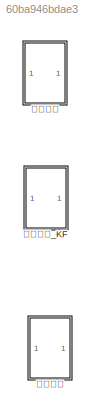
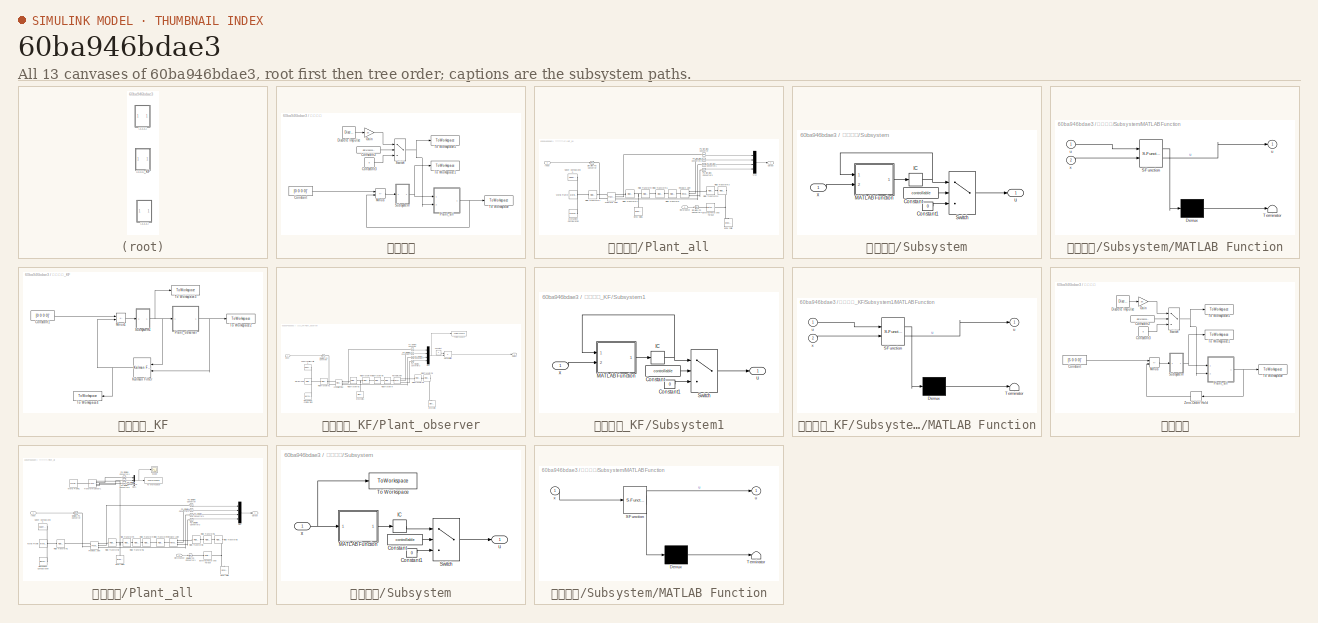
[diagram: thumbnail index - all 13 canvases of the model, root first then tree order]
MODEL slx_60ba946bdae3
KIND model
CONFIG AbsTol = auto
CONFIG EnableMultiTasking = off
CONFIG FixedStep = control_period
CONFIG MaxStep = auto
CONFIG MinStep = auto
CONFIG RelTol = 1e-3
CONFIG SampleTimeConstraint = Unconstrained
CONFIG SolverName = FixedStepAuto
CONFIG StartTime = 0.0
CONFIG StopTime = Tf
BLOCK [SubSystem] 振り上げ
  Commented = on
  Ports = []
  RequestExecContextInheritance = off
BLOCK [Constant] 振り上げ/Constant
  Value = [0 0 0 0]'
BLOCK [Constant] 振り上げ/Constant2
  Value = disturbance_on
BLOCK [Constant] 振り上げ/Constant3
  Value = 0
BLOCK [Reference] 振り上げ/Discrete Impulse  REF=dspsrcs4/Discrete 
Impulse
  Ports = [0, 1]
  SourceBlock = dspsrcs4/Discrete \nImpulse
  SourceProductBaseCode = DS
  SourceType = Discrete Impulse
BLOCK [Gain] 振り上げ/Gain
  Gain = 20
BLOCK [Sum] 振り上げ/Minus
  IconShape = rectangular
  Inputs = +-
  Ports = [2, 1]
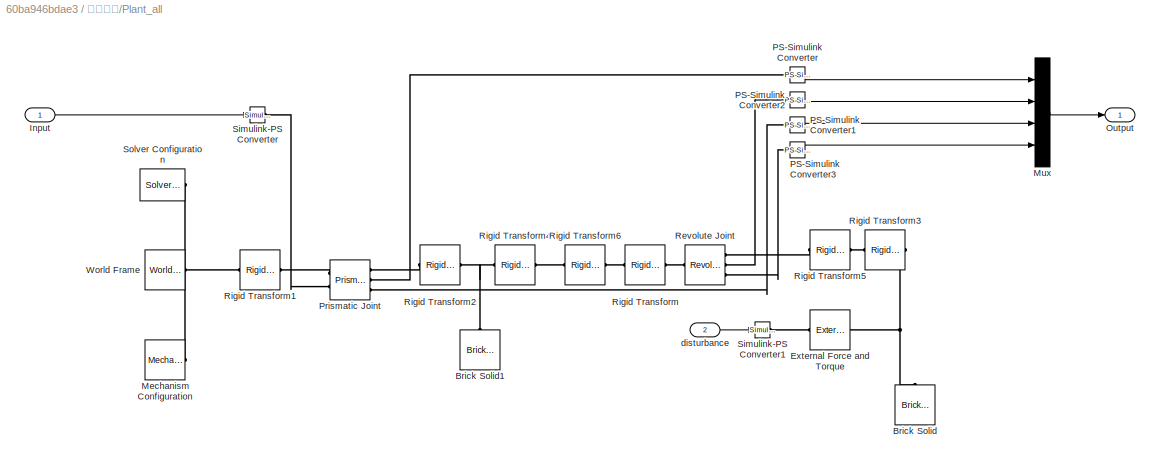
BLOCK [SubSystem] 振り上げ/Plant_all
  Ports = [2, 1]
  RequestExecContextInheritance = off
BLOCK [Reference] 振り上げ/Plant_all/Brick Solid  REF=sm_lib/Body Elements/Brick Solid
  NameLocation = right
  Ports = [0, 0, 0, 0, 0, 0, 1]
  SourceBlock = sm_lib/Body Elements/Brick Solid
  SourceProductBaseCode = MS
  SourceType = Brick Solid
BLOCK [Reference] 振り上げ/Plant_all/Brick Solid1  REF=sm_lib/Body Elements/Brick Solid
  NameLocation = right
  Ports = [0, 0, 0, 0, 0, 0, 1]
  SourceBlock = sm_lib/Body Elements/Brick Solid
  SourceProductBaseCode = MS
  SourceType = Brick Solid
BLOCK [Reference] 振り上げ/Plant_all/External Force and Torque  REF=sm_lib/Forces and
Torques/External Force
and Torque
  Ports = [0, 0, 0, 0, 0, 1, 1]
  SourceBlock = sm_lib/Forces and\nTorques/External Force\nand Torque
  SourceProductBaseCode = MS
  SourceType = External Force\nand Torque
BLOCK [Inport] 振り上げ/Plant_all/Input
BLOCK [Reference] 振り上げ/Plant_all/Mechanism Configuration  REF=sm_lib/Utilities/Mechanism
Configuration
  Ports = [0, 0, 0, 0, 0, 0, 1]
  SourceBlock = sm_lib/Utilities/Mechanism\nConfiguration
  SourceProductBaseCode = MS
  SourceType = Mechanism\nConfiguration
BLOCK [Mux] 振り上げ/Plant_all/Mux
  DisplayOption = bar
  Ports = [4, 1]
BLOCK [Outport] 振り上げ/Plant_all/Output
BLOCK [Reference] 振り上げ/Plant_all/PS-Simulink Converter  REF=nesl_utility/PS-Simulink
Converter
  Ports = [0, 1, 0, 0, 0, 1]
  SourceBlock = nesl_utility/PS-Simulink\nConverter
  SourceProductBaseCode = SS,PW,VE
  SourceType = PS-Simulink\nConverter
BLOCK [Reference] 振り上げ/Plant_all/PS-Simulink Converter1  REF=nesl_utility/PS-Simulink
Converter
  Ports = [0, 1, 0, 0, 0, 1]
  SourceBlock = nesl_utility/PS-Simulink\nConverter
  SourceProductBaseCode = SS,PW,VE
  SourceType = PS-Simulink\nConverter
BLOCK [Reference] 振り上げ/Plant_all/PS-Simulink Converter2  REF=nesl_utility/PS-Simulink
Converter
  Ports = [0, 1, 0, 0, 0, 1]
  SourceBlock = nesl_utility/PS-Simulink\nConverter
  SourceProductBaseCode = SS,PW,VE
  SourceType = PS-Simulink\nConverter
BLOCK [Reference] 振り上げ/Plant_all/PS-Simulink Converter3  REF=nesl_utility/PS-Simulink
Converter
  Ports = [0, 1, 0, 0, 0, 1]
  SourceBlock = nesl_utility/PS-Simulink\nConverter
  SourceProductBaseCode = SS,PW,VE
  SourceType = PS-Simulink\nConverter
BLOCK [Reference] 振り上げ/Plant_all/Prismatic Joint  REF=sm_lib/Joints/Prismatic
Joint
  Ports = [0, 0, 0, 0, 0, 2, 3]
  SourceBlock = sm_lib/Joints/Prismatic\nJoint
  SourceProductBaseCode = MS
  SourceType = Prismatic\nJoint
BLOCK [Reference] 振り上げ/Plant_all/Revolute Joint  REF=sm_lib/Joints/Revolute Joint
  Ports = [0, 0, 0, 0, 0, 1, 3]
  SourceBlock = sm_lib/Joints/Revolute Joint
  SourceProductBaseCode = MS
  SourceType = Revolute Joint
BLOCK [Reference] 振り上げ/Plant_all/Rigid Transform  REF=sm_lib/Frames and
Transforms/Rigid
Transform
  Ports = [0, 0, 0, 0, 0, 1, 1]
  SourceBlock = sm_lib/Frames and\nTransforms/Rigid\nTransform
  SourceProductBaseCode = MS
  SourceType = Rigid\nTransform
BLOCK [Reference] 振り上げ/Plant_all/Rigid Transform1  REF=sm_lib/Frames and
Transforms/Rigid
Transform
  Ports = [0, 0, 0, 0, 0, 1, 1]
  SourceBlock = sm_lib/Frames and\nTransforms/Rigid\nTransform
  SourceProductBaseCode = MS
  SourceType = Rigid\nTransform
BLOCK [Reference] 振り上げ/Plant_all/Rigid Transform2  REF=sm_lib/Frames and
Transforms/Rigid
Transform
  Ports = [0, 0, 0, 0, 0, 1, 1]
  SourceBlock = sm_lib/Frames and\nTransforms/Rigid\nTransform
  SourceProductBaseCode = MS
  SourceType = Rigid\nTransform
BLOCK [Reference] 振り上げ/Plant_all/Rigid Transform3  REF=sm_lib/Frames and
Transforms/Rigid
Transform
  Ports = [0, 0, 0, 0, 0, 1, 1]
  SourceBlock = sm_lib/Frames and\nTransforms/Rigid\nTransform
  SourceProductBaseCode = MS
  SourceType = Rigid\nTransform
BLOCK [Reference] 振り上げ/Plant_all/Rigid Transform4  REF=sm_lib/Frames and
Transforms/Rigid
Transform
  Ports = [0, 0, 0, 0, 0, 1, 1]
  SourceBlock = sm_lib/Frames and\nTransforms/Rigid\nTransform
  SourceProductBaseCode = MS
  SourceType = Rigid\nTransform
BLOCK [Reference] 振り上げ/Plant_all/Rigid Transform5  REF=sm_lib/Frames and
Transforms/Rigid
Transform
  Ports = [0, 0, 0, 0, 0, 1, 1]
  SourceBlock = sm_lib/Frames and\nTransforms/Rigid\nTransform
  SourceProductBaseCode = MS
  SourceType = Rigid\nTransform
BLOCK [Reference] 振り上げ/Plant_all/Rigid Transform6  REF=sm_lib/Frames and
Transforms/Rigid
Transform
  Ports = [0, 0, 0, 0, 0, 1, 1]
  SourceBlock = sm_lib/Frames and\nTransforms/Rigid\nTransform
  SourceProductBaseCode = MS
  SourceType = Rigid\nTransform
BLOCK [Reference] 振り上げ/Plant_all/Simulink-PS Converter  REF=nesl_utility/Simulink-PS
Converter
  Ports = [1, 0, 0, 0, 0, 0, 1]
  SourceBlock = nesl_utility/Simulink-PS\nConverter
  SourceProductBaseCode = SS,PW,VE
  SourceType = Simulink-PS\nConverter
BLOCK [Reference] 振り上げ/Plant_all/Simulink-PS Converter1  REF=nesl_utility/Simulink-PS
Converter
  Ports = [1, 0, 0, 0, 0, 0, 1]
  SourceBlock = nesl_utility/Simulink-PS\nConverter
  SourceProductBaseCode = SS,PW,VE
  SourceType = Simulink-PS\nConverter
BLOCK [Reference] 振り上げ/Plant_all/Solver Configuration  REF=nesl_utility/Solver
Configuration
  Ports = [0, 0, 0, 0, 0, 0, 1]
  SourceBlock = nesl_utility/Solver\nConfiguration
  SourceProductBaseCode = SS,PW,VE
  SourceType = Solver\nConfiguration
BLOCK [Reference] 振り上げ/Plant_all/World Frame  REF=sm_lib/Frames and
Transforms/World Frame
  Ports = [0, 0, 0, 0, 0, 0, 1]
  SourceBlock = sm_lib/Frames and\nTransforms/World Frame
  SourceProductBaseCode = MS
  SourceType = World Frame
BLOCK [Inport] 振り上げ/Plant_all/disturbance
  Port = 2
BLOCK [SubSystem] 振り上げ/Subsystem
  Ports = [1, 1]
  RequestExecContextInheritance = off
BLOCK [Constant] 振り上げ/Subsystem/Constant
  Value = controllable
BLOCK [Constant] 振り上げ/Subsystem/Constant1
  Value = 0
BLOCK [InitialCondition] 振り上げ/Subsystem/IC
  Value = 0
BLOCK [SubSystem] 振り上げ/Subsystem/MATLAB Function
  ErrorFcn = Stateflow.Translate.translate
  PermitHierarchicalResolution = ExplicitOnly
  Ports = [2, 1]
  RequestExecContextInheritance = off
  SFBlockType = MATLAB Function
  TreatAsAtomicUnit = on
BLOCK [Demux] 振り上げ/Subsystem/MATLAB Function/ Demux 
  Outputs = 1
  Ports = [1, 1]
BLOCK [S-Function] 振り上げ/Subsystem/MATLAB Function/ SFunction 
  EnableBusSupport = on
  FunctionName = sf_sfun
  Parameters = A,B,K,control_period
  PortCounts = [2 2]
  Ports = [2, 2]
  SFcnIsStateOwnerBlock = off
  SFunctionDeploymentMode = off
  Tag = Stateflow S-Function 2
BLOCK [Terminator] 振り上げ/Subsystem/MATLAB Function/ Terminator 
BLOCK [Outport] 振り上げ/Subsystem/MATLAB Function/u
BLOCK [Inport] 振り上げ/Subsystem/MATLAB Function/u 
BLOCK [Inport] 振り上げ/Subsystem/MATLAB Function/x
  Port = 2
BLOCK [Switch] 振り上げ/Subsystem/Switch
  Criteria = u2 > Threshold
  InputSameDT = off
  SaturateOnIntegerOverflow = off
BLOCK [Outport] 振り上げ/Subsystem/u
BLOCK [Inport] 振り上げ/Subsystem/x
BLOCK [Switch] 振り上げ/Switch
  Criteria = u2 > Threshold
  InputSameDT = off
  SaturateOnIntegerOverflow = off
BLOCK [ToWorkspace] 振り上げ/To Workspace
  FixptAsFi = on
  MaxDataPoints = inf
  Ports = [1]
  SampleTime = -1
  SaveFormat = Timeseries
  VariableName = output
BLOCK [ToWorkspace] 振り上げ/To Workspace1
  FixptAsFi = on
  MaxDataPoints = inf
  Ports = [1]
  SampleTime = -1
  SaveFormat = Timeseries
  VariableName = control_input
BLOCK [ToWorkspace] 振り上げ/To Workspace5
  FixptAsFi = on
  MaxDataPoints = inf
  Ports = [1]
  SampleTime = -1
  SaveFormat = Timeseries
  VariableName = disturbance
BLOCK [SubSystem] 振り上げ_KF
  Commented = on
  Ports = []
  RequestExecContextInheritance = off
BLOCK [Constant] 振り上げ_KF/Constant1
  Commented = on
  Value = [0 0 0 0]'
BLOCK [Reference] 振り上げ_KF/Kalman Filter  REF=ctrlSharedLib/Kalman Filter
  Commented = on
  NameLocation = top
  Ports = [2, 1]
  SourceBlock = ctrlSharedLib/Kalman Filter
  SourceProductBaseCode = CT,ID
  SourceType = ctrlKalmanFilter
BLOCK [Sum] 振り上げ_KF/Minus1
  Commented = on
  IconShape = rectangular
  Inputs = +-
  Ports = [2, 1]
BLOCK [SubSystem] 振り上げ_KF/Plant_observer
  Commented = on
  Ports = [1, 1]
  RequestExecContextInheritance = off
BLOCK [Reference] 振り上げ_KF/Plant_observer/Brick Solid  REF=sm_lib/Body Elements/Brick Solid
  NameLocation = right
  Ports = [0, 0, 0, 0, 0, 0, 1]
  SourceBlock = sm_lib/Body Elements/Brick Solid
  SourceProductBaseCode = MS
  SourceType = Brick Solid
BLOCK [Reference] 振り上げ_KF/Plant_observer/Brick Solid1  REF=sm_lib/Body Elements/Brick Solid
  NameLocation = right
  Ports = [0, 0, 0, 0, 0, 0, 1]
  SourceBlock = sm_lib/Body Elements/Brick Solid
  SourceProductBaseCode = MS
  SourceType = Brick Solid
BLOCK [Constant] 振り上げ_KF/Plant_observer/Constant
  Value = C
BLOCK [Inport] 振り上げ_KF/Plant_observer/Input
BLOCK [Product] 振り上げ_KF/Plant_observer/Matrix Multiply
  Multiplication = Matrix(*)
  Ports = [2, 1]
BLOCK [Reference] 振り上げ_KF/Plant_observer/Mechanism Configuration  REF=sm_lib/Utilities/Mechanism
Configuration
  Ports = [0, 0, 0, 0, 0, 0, 1]
  SourceBlock = sm_lib/Utilities/Mechanism\nConfiguration
  SourceProductBaseCode = MS
  SourceType = Mechanism\nConfiguration
BLOCK [Mux] 振り上げ_KF/Plant_observer/Mux
  DisplayOption = bar
  Ports = [4, 1]
BLOCK [Outport] 振り上げ_KF/Plant_observer/Output
BLOCK [Reference] 振り上げ_KF/Plant_observer/PS-Simulink Converter  REF=nesl_utility/PS-Simulink
Converter
  Ports = [0, 1, 0, 0, 0, 1]
  SourceBlock = nesl_utility/PS-Simulink\nConverter
  SourceProductBaseCode = SS,PW,VE
  SourceType = PS-Simulink\nConverter
BLOCK [Reference] 振り上げ_KF/Plant_observer/PS-Simulink Converter1  REF=nesl_utility/PS-Simulink
Converter
  Ports = [0, 1, 0, 0, 0, 1]
  SourceBlock = nesl_utility/PS-Simulink\nConverter
  SourceProductBaseCode = SS,PW,VE
  SourceType = PS-Simulink\nConverter
BLOCK [Reference] 振り上げ_KF/Plant_observer/PS-Simulink Converter2  REF=nesl_utility/PS-Simulink
Converter
  Ports = [0, 1, 0, 0, 0, 1]
  SourceBlock = nesl_utility/PS-Simulink\nConverter
  SourceProductBaseCode = SS,PW,VE
  SourceType = PS-Simulink\nConverter
BLOCK [Reference] 振り上げ_KF/Plant_observer/PS-Simulink Converter3  REF=nesl_utility/PS-Simulink
Converter
  Ports = [0, 1, 0, 0, 0, 1]
  SourceBlock = nesl_utility/PS-Simulink\nConverter
  SourceProductBaseCode = SS,PW,VE
  SourceType = PS-Simulink\nConverter
BLOCK [Reference] 振り上げ_KF/Plant_observer/Prismatic Joint  REF=sm_lib/Joints/Prismatic
Joint
  Ports = [0, 0, 0, 0, 0, 2, 3]
  SourceBlock = sm_lib/Joints/Prismatic\nJoint
  SourceProductBaseCode = MS
  SourceType = Prismatic\nJoint
BLOCK [Reference] 振り上げ_KF/Plant_observer/Revolute Joint  REF=sm_lib/Joints/Revolute Joint
  Ports = [0, 0, 0, 0, 0, 1, 3]
  SourceBlock = sm_lib/Joints/Revolute Joint
  SourceProductBaseCode = MS
  SourceType = Revolute Joint
BLOCK [Reference] 振り上げ_KF/Plant_observer/Rigid Transform  REF=sm_lib/Frames and
Transforms/Rigid
Transform
  Ports = [0, 0, 0, 0, 0, 1, 1]
  SourceBlock = sm_lib/Frames and\nTransforms/Rigid\nTransform
  SourceProductBaseCode = MS
  SourceType = Rigid\nTransform
BLOCK [Reference] 振り上げ_KF/Plant_observer/Rigid Transform1  REF=sm_lib/Frames and
Transforms/Rigid
Transform
  Ports = [0, 0, 0, 0, 0, 1, 1]
  SourceBlock = sm_lib/Frames and\nTransforms/Rigid\nTransform
  SourceProductBaseCode = MS
  SourceType = Rigid\nTransform
BLOCK [Reference] 振り上げ_KF/Plant_observer/Rigid Transform2  REF=sm_lib/Frames and
Transforms/Rigid
Transform
  Ports = [0, 0, 0, 0, 0, 1, 1]
  SourceBlock = sm_lib/Frames and\nTransforms/Rigid\nTransform
  SourceProductBaseCode = MS
  SourceType = Rigid\nTransform
BLOCK [Reference] 振り上げ_KF/Plant_observer/Rigid Transform3  REF=sm_lib/Frames and
Transforms/Rigid
Transform
  Ports = [0, 0, 0, 0, 0, 1, 1]
  SourceBlock = sm_lib/Frames and\nTransforms/Rigid\nTransform
  SourceProductBaseCode = MS
  SourceType = Rigid\nTransform
BLOCK [Reference] 振り上げ_KF/Plant_observer/Rigid Transform4  REF=sm_lib/Frames and
Transforms/Rigid
Transform
  Ports = [0, 0, 0, 0, 0, 1, 1]
  SourceBlock = sm_lib/Frames and\nTransforms/Rigid\nTransform
  SourceProductBaseCode = MS
  SourceType = Rigid\nTransform
BLOCK [Reference] 振り上げ_KF/Plant_observer/Rigid Transform5  REF=sm_lib/Frames and
Transforms/Rigid
Transform
  Ports = [0, 0, 0, 0, 0, 1, 1]
  SourceBlock = sm_lib/Frames and\nTransforms/Rigid\nTransform
  SourceProductBaseCode = MS
  SourceType = Rigid\nTransform
BLOCK [Reference] 振り上げ_KF/Plant_observer/Rigid Transform6  REF=sm_lib/Frames and
Transforms/Rigid
Transform
  Ports = [0, 0, 0, 0, 0, 1, 1]
  SourceBlock = sm_lib/Frames and\nTransforms/Rigid\nTransform
  SourceProductBaseCode = MS
  SourceType = Rigid\nTransform
BLOCK [Reference] 振り上げ_KF/Plant_observer/Simulink-PS Converter  REF=nesl_utility/Simulink-PS
Converter
  Ports = [1, 0, 0, 0, 0, 0, 1]
  SourceBlock = nesl_utility/Simulink-PS\nConverter
  SourceProductBaseCode = SS,PW,VE
  SourceType = Simulink-PS\nConverter
BLOCK [Reference] 振り上げ_KF/Plant_observer/Solver Configuration  REF=nesl_utility/Solver
Configuration
  Ports = [0, 0, 0, 0, 0, 0, 1]
  SourceBlock = nesl_utility/Solver\nConfiguration
  SourceProductBaseCode = SS,PW,VE
  SourceType = Solver\nConfiguration
BLOCK [ToWorkspace] 振り上げ_KF/Plant_observer/To Workspace
  FixptAsFi = on
  MaxDataPoints = inf
  Ports = [1]
  SampleTime = -1
  SaveFormat = Timeseries
  VariableName = real_value
BLOCK [Reference] 振り上げ_KF/Plant_observer/World Frame  REF=sm_lib/Frames and
Transforms/World Frame
  Ports = [0, 0, 0, 0, 0, 0, 1]
  SourceBlock = sm_lib/Frames and\nTransforms/World Frame
  SourceProductBaseCode = MS
  SourceType = World Frame
BLOCK [SubSystem] 振り上げ_KF/Subsystem1
  Commented = on
  Ports = [1, 1]
  RequestExecContextInheritance = off
BLOCK [Constant] 振り上げ_KF/Subsystem1/Constant
  Value = controllable
BLOCK [Constant] 振り上げ_KF/Subsystem1/Constant1
  Value = 0
BLOCK [InitialCondition] 振り上げ_KF/Subsystem1/IC
  Value = 0
BLOCK [SubSystem] 振り上げ_KF/Subsystem1/MATLAB Function
  ErrorFcn = Stateflow.Translate.translate
  PermitHierarchicalResolution = ExplicitOnly
  Ports = [2, 1]
  RequestExecContextInheritance = off
  SFBlockType = MATLAB Function
  TreatAsAtomicUnit = on
BLOCK [Demux] 振り上げ_KF/Subsystem1/MATLAB Function/ Demux 
  Outputs = 1
  Ports = [1, 1]
BLOCK [S-Function] 振り上げ_KF/Subsystem1/MATLAB Function/ SFunction 
  EnableBusSupport = on
  FunctionName = sf_sfun
  Parameters = A,B,K,Umax,control_period
  PortCounts = [2 2]
  Ports = [2, 2]
  SFcnIsStateOwnerBlock = off
  SFunctionDeploymentMode = off
  Tag = Stateflow S-Function 1
BLOCK [Terminator] 振り上げ_KF/Subsystem1/MATLAB Function/ Terminator 
BLOCK [Outport] 振り上げ_KF/Subsystem1/MATLAB Function/u
BLOCK [Inport] 振り上げ_KF/Subsystem1/MATLAB Function/u 
BLOCK [Inport] 振り上げ_KF/Subsystem1/MATLAB Function/x
  Port = 2
BLOCK [Switch] 振り上げ_KF/Subsystem1/Switch
  Criteria = u2 > Threshold
  InputSameDT = off
  SaturateOnIntegerOverflow = off
BLOCK [Outport] 振り上げ_KF/Subsystem1/u
BLOCK [Inport] 振り上げ_KF/Subsystem1/x
BLOCK [ToWorkspace] 振り上げ_KF/To Workspace2
  Commented = on
  FixptAsFi = on
  MaxDataPoints = inf
  Ports = [1]
  SampleTime = -1
  SaveFormat = Timeseries
  VariableName = output1
BLOCK [ToWorkspace] 振り上げ_KF/To Workspace3
  Commented = on
  FixptAsFi = on
  MaxDataPoints = inf
  Ports = [1]
  SampleTime = -1
  SaveFormat = Timeseries
  VariableName = control_input1
BLOCK [ToWorkspace] 振り上げ_KF/To Workspace4
  Commented = on
  FixptAsFi = on
  MaxDataPoints = inf
  NameLocation = top
  Ports = [1]
  SampleTime = -1
  SaveFormat = Timeseries
  VariableName = est_value
BLOCK [SubSystem] 振り下げ
  Ports = []
  RequestExecContextInheritance = off
BLOCK [Constant] 振り下げ/Constant
  Value = [5 0 0 0]'
BLOCK [Constant] 振り下げ/Constant2
  Value = disturbance_on
BLOCK [Constant] 振り下げ/Constant3
  Value = 0
BLOCK [Reference] 振り下げ/Discrete Impulse  REF=dspsrcs4/Discrete 
Impulse
  Ports = [0, 1]
  SourceBlock = dspsrcs4/Discrete \nImpulse
  SourceProductBaseCode = DS
  SourceType = Discrete Impulse
BLOCK [Gain] 振り下げ/Gain
  Gain = 30
BLOCK [Sum] 振り下げ/Minus
  IconShape = rectangular
  Inputs = +-
  Ports = [2, 1]
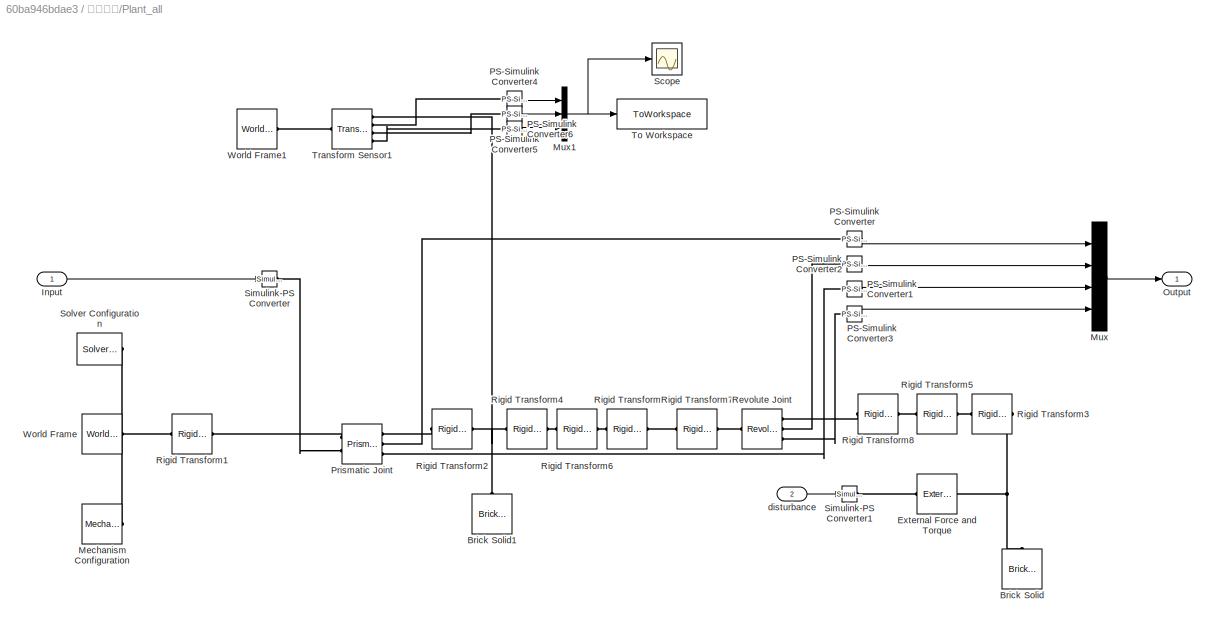
BLOCK [SubSystem] 振り下げ/Plant_all
  Ports = [2, 1]
  RequestExecContextInheritance = off
BLOCK [Reference] 振り下げ/Plant_all/Brick Solid  REF=sm_lib/Body Elements/Brick Solid
  NameLocation = right
  Ports = [0, 0, 0, 0, 0, 0, 1]
  SourceBlock = sm_lib/Body Elements/Brick Solid
  SourceProductBaseCode = MS
  SourceType = Brick Solid
BLOCK [Reference] 振り下げ/Plant_all/Brick Solid1  REF=sm_lib/Body Elements/Brick Solid
  NameLocation = right
  Ports = [0, 0, 0, 0, 0, 0, 1]
  SourceBlock = sm_lib/Body Elements/Brick Solid
  SourceProductBaseCode = MS
  SourceType = Brick Solid
BLOCK [Reference] 振り下げ/Plant_all/External Force and Torque  REF=sm_lib/Forces and
Torques/External Force
and Torque
  Ports = [0, 0, 0, 0, 0, 1, 1]
  SourceBlock = sm_lib/Forces and\nTorques/External Force\nand Torque
  SourceProductBaseCode = MS
  SourceType = External Force\nand Torque
BLOCK [Inport] 振り下げ/Plant_all/Input
BLOCK [Reference] 振り下げ/Plant_all/Mechanism Configuration  REF=sm_lib/Utilities/Mechanism
Configuration
  Ports = [0, 0, 0, 0, 0, 0, 1]
  SourceBlock = sm_lib/Utilities/Mechanism\nConfiguration
  SourceProductBaseCode = MS
  SourceType = Mechanism\nConfiguration
BLOCK [Mux] 振り下げ/Plant_all/Mux
  DisplayOption = bar
  Ports = [4, 1]
BLOCK [Mux] 振り下げ/Plant_all/Mux1
  Commented = on
  DisplayOption = bar
  Inputs = 3
  Ports = [3, 1]
BLOCK [Outport] 振り下げ/Plant_all/Output
BLOCK [Reference] 振り下げ/Plant_all/PS-Simulink Converter  REF=nesl_utility/PS-Simulink
Converter
  Ports = [0, 1, 0, 0, 0, 1]
  SourceBlock = nesl_utility/PS-Simulink\nConverter
  SourceProductBaseCode = SS,PW,VE
  SourceType = PS-Simulink\nConverter
BLOCK [Reference] 振り下げ/Plant_all/PS-Simulink Converter1  REF=nesl_utility/PS-Simulink
Converter
  Ports = [0, 1, 0, 0, 0, 1]
  SourceBlock = nesl_utility/PS-Simulink\nConverter
  SourceProductBaseCode = SS,PW,VE
  SourceType = PS-Simulink\nConverter
BLOCK [Reference] 振り下げ/Plant_all/PS-Simulink Converter2  REF=nesl_utility/PS-Simulink
Converter
  Ports = [0, 1, 0, 0, 0, 1]
  SourceBlock = nesl_utility/PS-Simulink\nConverter
  SourceProductBaseCode = SS,PW,VE
  SourceType = PS-Simulink\nConverter
BLOCK [Reference] 振り下げ/Plant_all/PS-Simulink Converter3  REF=nesl_utility/PS-Simulink
Converter
  Ports = [0, 1, 0, 0, 0, 1]
  SourceBlock = nesl_utility/PS-Simulink\nConverter
  SourceProductBaseCode = SS,PW,VE
  SourceType = PS-Simulink\nConverter
BLOCK [Reference] 振り下げ/Plant_all/PS-Simulink Converter4  REF=nesl_utility/PS-Simulink
Converter
  Commented = on
  Ports = [0, 1, 0, 0, 0, 1]
  SourceBlock = nesl_utility/PS-Simulink\nConverter
  SourceProductBaseCode = SS,PW,VE
  SourceType = PS-Simulink\nConverter
BLOCK [Reference] 振り下げ/Plant_all/PS-Simulink Converter5  REF=nesl_utility/PS-Simulink
Converter
  Commented = on
  Ports = [0, 1, 0, 0, 0, 1]
  SourceBlock = nesl_utility/PS-Simulink\nConverter
  SourceProductBaseCode = SS,PW,VE
  SourceType = PS-Simulink\nConverter
BLOCK [Reference] 振り下げ/Plant_all/PS-Simulink Converter6  REF=nesl_utility/PS-Simulink
Converter
  Commented = on
  Ports = [0, 1, 0, 0, 0, 1]
  SourceBlock = nesl_utility/PS-Simulink\nConverter
  SourceProductBaseCode = SS,PW,VE
  SourceType = PS-Simulink\nConverter
BLOCK [Reference] 振り下げ/Plant_all/Prismatic Joint  REF=sm_lib/Joints/Prismatic
Joint
  Ports = [0, 0, 0, 0, 0, 2, 3]
  SourceBlock = sm_lib/Joints/Prismatic\nJoint
  SourceProductBaseCode = MS
  SourceType = Prismatic\nJoint
BLOCK [Reference] 振り下げ/Plant_all/Revolute Joint  REF=sm_lib/Joints/Revolute Joint
  Ports = [0, 0, 0, 0, 0, 1, 3]
  SourceBlock = sm_lib/Joints/Revolute Joint
  SourceProductBaseCode = MS
  SourceType = Revolute Joint
BLOCK [Reference] 振り下げ/Plant_all/Rigid Transform  REF=sm_lib/Frames and
Transforms/Rigid
Transform
  Ports = [0, 0, 0, 0, 0, 1, 1]
  SourceBlock = sm_lib/Frames and\nTransforms/Rigid\nTransform
  SourceProductBaseCode = MS
  SourceType = Rigid\nTransform
BLOCK [Reference] 振り下げ/Plant_all/Rigid Transform1  REF=sm_lib/Frames and
Transforms/Rigid
Transform
  Ports = [0, 0, 0, 0, 0, 1, 1]
  SourceBlock = sm_lib/Frames and\nTransforms/Rigid\nTransform
  SourceProductBaseCode = MS
  SourceType = Rigid\nTransform
BLOCK [Reference] 振り下げ/Plant_all/Rigid Transform2  REF=sm_lib/Frames and
Transforms/Rigid
Transform
  Ports = [0, 0, 0, 0, 0, 1, 1]
  SourceBlock = sm_lib/Frames and\nTransforms/Rigid\nTransform
  SourceProductBaseCode = MS
  SourceType = Rigid\nTransform
BLOCK [Reference] 振り下げ/Plant_all/Rigid Transform3  REF=sm_lib/Frames and
Transforms/Rigid
Transform
  Ports = [0, 0, 0, 0, 0, 1, 1]
  SourceBlock = sm_lib/Frames and\nTransforms/Rigid\nTransform
  SourceProductBaseCode = MS
  SourceType = Rigid\nTransform
BLOCK [Reference] 振り下げ/Plant_all/Rigid Transform4  REF=sm_lib/Frames and
Transforms/Rigid
Transform
  Ports = [0, 0, 0, 0, 0, 1, 1]
  SourceBlock = sm_lib/Frames and\nTransforms/Rigid\nTransform
  SourceProductBaseCode = MS
  SourceType = Rigid\nTransform
BLOCK [Reference] 振り下げ/Plant_all/Rigid Transform5  REF=sm_lib/Frames and
Transforms/Rigid
Transform
  Ports = [0, 0, 0, 0, 0, 1, 1]
  SourceBlock = sm_lib/Frames and\nTransforms/Rigid\nTransform
  SourceProductBaseCode = MS
  SourceType = Rigid\nTransform
BLOCK [Reference] 振り下げ/Plant_all/Rigid Transform6  REF=sm_lib/Frames and
Transforms/Rigid
Transform
  Ports = [0, 0, 0, 0, 0, 1, 1]
  SourceBlock = sm_lib/Frames and\nTransforms/Rigid\nTransform
  SourceProductBaseCode = MS
  SourceType = Rigid\nTransform
BLOCK [Reference] 振り下げ/Plant_all/Rigid Transform7  REF=sm_lib/Frames and
Transforms/Rigid
Transform
  Ports = [0, 0, 0, 0, 0, 1, 1]
  SourceBlock = sm_lib/Frames and\nTransforms/Rigid\nTransform
  SourceProductBaseCode = MS
  SourceType = Rigid\nTransform
BLOCK [Reference] 振り下げ/Plant_all/Rigid Transform8  REF=sm_lib/Frames and
Transforms/Rigid
Transform
  Commented = through
  Ports = [0, 0, 0, 0, 0, 1, 1]
  SourceBlock = sm_lib/Frames and\nTransforms/Rigid\nTransform
  SourceProductBaseCode = MS
  SourceType = Rigid\nTransform
BLOCK [Scope] 振り下げ/Plant_all/Scope
  Commented = on
  Floating = off
  NumInputPorts = 1
  Ports = [1]
  ScopeSpecificationString = Simulink.scopes.TimeScopeBlockCfg('CurrentConfiguration', extmgr.ConfigurationSet(extmgr.Configuration('Core','General UI',true),extmgr.Configuration('Core','Source UI',true),extmgr.Configuration('Sources','WiredSimulink',true),extmgr.Configuration('Visuals','Time Domain',true,'SerializedDisplays',{struct('MinYLimReal','-85.62147','MaxYLimReal','770.59325','YLabelReal','','MinYLimMag','0.00000','M...<+1435ch>
BLOCK [Reference] 振り下げ/Plant_all/Simulink-PS Converter  REF=nesl_utility/Simulink-PS
Converter
  Ports = [1, 0, 0, 0, 0, 0, 1]
  SourceBlock = nesl_utility/Simulink-PS\nConverter
  SourceProductBaseCode = SS,PW,VE
  SourceType = Simulink-PS\nConverter
BLOCK [Reference] 振り下げ/Plant_all/Simulink-PS Converter1  REF=nesl_utility/Simulink-PS
Converter
  Ports = [1, 0, 0, 0, 0, 0, 1]
  SourceBlock = nesl_utility/Simulink-PS\nConverter
  SourceProductBaseCode = SS,PW,VE
  SourceType = Simulink-PS\nConverter
BLOCK [Reference] 振り下げ/Plant_all/Solver Configuration  REF=nesl_utility/Solver
Configuration
  Ports = [0, 0, 0, 0, 0, 0, 1]
  SourceBlock = nesl_utility/Solver\nConfiguration
  SourceProductBaseCode = SS,PW,VE
  SourceType = Solver\nConfiguration
BLOCK [ToWorkspace] 振り下げ/Plant_all/To Workspace
  Commented = on
  FixptAsFi = on
  MaxDataPoints = inf
  Ports = [1]
  SampleTime = -1
  SaveFormat = Timeseries
  VariableName = translation
BLOCK [Reference] 振り下げ/Plant_all/Transform Sensor1  REF=sm_lib/Frames and
Transforms/Transform
Sensor
  Commented = on
  Ports = [0, 0, 0, 0, 0, 1, 4]
  SourceBlock = sm_lib/Frames and\nTransforms/Transform\nSensor
  SourceProductBaseCode = MS
  SourceType = Transform\nSensor
BLOCK [Reference] 振り下げ/Plant_all/World Frame  REF=sm_lib/Frames and
Transforms/World Frame
  Ports = [0, 0, 0, 0, 0, 0, 1]
  SourceBlock = sm_lib/Frames and\nTransforms/World Frame
  SourceProductBaseCode = MS
  SourceType = World Frame
BLOCK [Reference] 振り下げ/Plant_all/World Frame1  REF=sm_lib/Frames and
Transforms/World Frame
  Commented = on
  Ports = [0, 0, 0, 0, 0, 0, 1]
  SourceBlock = sm_lib/Frames and\nTransforms/World Frame
  SourceProductBaseCode = MS
  SourceType = World Frame
BLOCK [Inport] 振り下げ/Plant_all/disturbance
  Port = 2
BLOCK [SubSystem] 振り下げ/Subsystem
  Ports = [1, 1]
  RequestExecContextInheritance = off
BLOCK [Constant] 振り下げ/Subsystem/Constant
  Value = controllable
BLOCK [Constant] 振り下げ/Subsystem/Constant1
  Value = 0
BLOCK [InitialCondition] 振り下げ/Subsystem/IC
  Commented = through
  Value = 0
BLOCK [SubSystem] 振り下げ/Subsystem/MATLAB Function
  ErrorFcn = Stateflow.Translate.translate
  PermitHierarchicalResolution = ExplicitOnly
  Ports = [1, 1]
  RequestExecContextInheritance = off
  SFBlockType = MATLAB Function
  TreatAsAtomicUnit = on
BLOCK [Demux] 振り下げ/Subsystem/MATLAB Function/ Demux 
  Outputs = 1
  Ports = [1, 1]
BLOCK [S-Function] 振り下げ/Subsystem/MATLAB Function/ SFunction 
  EnableBusSupport = on
  FunctionName = sf_sfun
  Parameters = K,Umax
  PortCounts = [1 2]
  Ports = [1, 2]
  SFcnIsStateOwnerBlock = off
  SFunctionDeploymentMode = off
  Tag = Stateflow S-Function 3
BLOCK [Terminator] 振り下げ/Subsystem/MATLAB Function/ Terminator 
BLOCK [Outport] 振り下げ/Subsystem/MATLAB Function/u
BLOCK [Inport] 振り下げ/Subsystem/MATLAB Function/x
BLOCK [Switch] 振り下げ/Subsystem/Switch
  Criteria = u2 > Threshold
  InputSameDT = off
  SaturateOnIntegerOverflow = off
BLOCK [ToWorkspace] 振り下げ/Subsystem/To Workspace
  FixptAsFi = on
  MaxDataPoints = inf
  Ports = [1]
  SampleTime = -1
  SaveFormat = Timeseries
  VariableName = error
BLOCK [Outport] 振り下げ/Subsystem/u
BLOCK [Inport] 振り下げ/Subsystem/x
BLOCK [Switch] 振り下げ/Switch
  Criteria = u2 > Threshold
  InputSameDT = off
  SaturateOnIntegerOverflow = off
BLOCK [ToWorkspace] 振り下げ/To Workspace
  FixptAsFi = on
  MaxDataPoints = inf
  Ports = [1]
  SampleTime = -1
  SaveFormat = Timeseries
  VariableName = output
BLOCK [ToWorkspace] 振り下げ/To Workspace1
  FixptAsFi = on
  MaxDataPoints = inf
  Ports = [1]
  SampleTime = -1
  SaveFormat = Timeseries
  VariableName = control_input
BLOCK [ToWorkspace] 振り下げ/To Workspace5
  FixptAsFi = on
  MaxDataPoints = inf
  Ports = [1]
  SampleTime = -1
  SaveFormat = Timeseries
  VariableName = disturbance
BLOCK [ZeroOrderHold] 振り下げ/Zero-Order Hold
  NameLocation = top
  SampleTime = control_period
LINE 振り上げ/Constant2:1 -> 振り上げ/Switch:2
LINE 振り上げ/Constant3:1 -> 振り上げ/Switch:3
LINE 振り上げ/Constant:1 -> 振り上げ/Minus:1
LINE 振り上げ/Discrete Impulse:1 -> 振り上げ/Gain:1
LINE 振り上げ/Gain:1 -> 振り上げ/Switch:1
LINE 振り上げ/Minus:1 -> 振り上げ/Subsystem:1
LINE 振り上げ/Plant_all/Input:1 -> 振り上げ/Plant_all/Simulink-PS Converter:1
LINE 振り上げ/Plant_all/Mux:1 -> 振り上げ/Plant_all/Output:1
LINE 振り上げ/Plant_all/PS-Simulink Converter1:1 -> 振り上げ/Plant_all/Mux:3
LINE 振り上げ/Plant_all/PS-Simulink Converter2:1 -> 振り上げ/Plant_all/Mux:2
LINE 振り上げ/Plant_all/PS-Simulink Converter3:1 -> 振り上げ/Plant_all/Mux:4
LINE 振り上げ/Plant_all/PS-Simulink Converter:1 -> 振り上げ/Plant_all/Mux:1
LINE 振り上げ/Plant_all/disturbance:1 -> 振り上げ/Plant_all/Simulink-PS Converter1:1
NET 振り上げ/Plant_all:1 -> 振り上げ/Minus:2, 振り上げ/To Workspace:1
LINE 振り上げ/Subsystem/Constant1:1 -> 振り上げ/Subsystem/Switch:3
LINE 振り上げ/Subsystem/Constant:1 -> 振り上げ/Subsystem/Switch:2
NET 振り上げ/Subsystem/IC:1 -> 振り上げ/Subsystem/MATLAB Function:1, 振り上げ/Subsystem/Switch:1
LINE 振り上げ/Subsystem/MATLAB Function:1 -> 振り上げ/Subsystem/IC:1
LINE 振り上げ/Subsystem/Switch:1 -> 振り上げ/Subsystem/u:1
LINE 振り上げ/Subsystem/x:1 -> 振り上げ/Subsystem/MATLAB Function:2
NET 振り上げ/Subsystem:1 -> 振り上げ/Plant_all:1, 振り上げ/To Workspace1:1
NET 振り上げ/Switch:1 -> 振り上げ/Plant_all:2, 振り上げ/To Workspace5:1
LINE 振り上げ_KF/Constant1:1 -> 振り上げ_KF/Minus1:1
NET 振り上げ_KF/Kalman Filter:1 -> 振り上げ_KF/Minus1:2, 振り上げ_KF/To Workspace4:1
LINE 振り上げ_KF/Minus1:1 -> 振り上げ_KF/Subsystem1:1
LINE 振り上げ_KF/Plant_observer/Constant:1 -> 振り上げ_KF/Plant_observer/Matrix Multiply:1
LINE 振り上げ_KF/Plant_observer/Input:1 -> 振り上げ_KF/Plant_observer/Simulink-PS Converter:1
LINE 振り上げ_KF/Plant_observer/Matrix Multiply:1 -> 振り上げ_KF/Plant_observer/Output:1
NET 振り上げ_KF/Plant_observer/Mux:1 -> 振り上げ_KF/Plant_observer/Matrix Multiply:2, 振り上げ_KF/Plant_observer/To Workspace:1
LINE 振り上げ_KF/Plant_observer/PS-Simulink Converter1:1 -> 振り上げ_KF/Plant_observer/Mux:3
LINE 振り上げ_KF/Plant_observer/PS-Simulink Converter2:1 -> 振り上げ_KF/Plant_observer/Mux:2
LINE 振り上げ_KF/Plant_observer/PS-Simulink Converter3:1 -> 振り上げ_KF/Plant_observer/Mux:4
LINE 振り上げ_KF/Plant_observer/PS-Simulink Converter:1 -> 振り上げ_KF/Plant_observer/Mux:1
NET 振り上げ_KF/Plant_observer:1 -> 振り上げ_KF/Kalman Filter:2, 振り上げ_KF/To Workspace2:1
LINE 振り上げ_KF/Subsystem1/Constant1:1 -> 振り上げ_KF/Subsystem1/Switch:3
LINE 振り上げ_KF/Subsystem1/Constant:1 -> 振り上げ_KF/Subsystem1/Switch:2
NET 振り上げ_KF/Subsystem1/IC:1 -> 振り上げ_KF/Subsystem1/MATLAB Function:1, 振り上げ_KF/Subsystem1/Switch:1
LINE 振り上げ_KF/Subsystem1/MATLAB Function:1 -> 振り上げ_KF/Subsystem1/IC:1
LINE 振り上げ_KF/Subsystem1/Switch:1 -> 振り上げ_KF/Subsystem1/u:1
LINE 振り上げ_KF/Subsystem1/x:1 -> 振り上げ_KF/Subsystem1/MATLAB Function:2
NET 振り上げ_KF/Subsystem1:1 -> 振り上げ_KF/Kalman Filter:1, 振り上げ_KF/Plant_observer:1, 振り上げ_KF/To Workspace3:1
LINE 振り下げ/Constant2:1 -> 振り下げ/Switch:2
LINE 振り下げ/Constant3:1 -> 振り下げ/Switch:3
LINE 振り下げ/Constant:1 -> 振り下げ/Minus:1
LINE 振り下げ/Discrete Impulse:1 -> 振り下げ/Gain:1
LINE 振り下げ/Gain:1 -> 振り下げ/Switch:1
LINE 振り下げ/Minus:1 -> 振り下げ/Subsystem:1
LINE 振り下げ/Plant_all/Input:1 -> 振り下げ/Plant_all/Simulink-PS Converter:1
NET 振り下げ/Plant_all/Mux1:1 -> 振り下げ/Plant_all/Scope:1, 振り下げ/Plant_all/To Workspace:1
LINE 振り下げ/Plant_all/Mux:1 -> 振り下げ/Plant_all/Output:1
LINE 振り下げ/Plant_all/PS-Simulink Converter1:1 -> 振り下げ/Plant_all/Mux:3
LINE 振り下げ/Plant_all/PS-Simulink Converter2:1 -> 振り下げ/Plant_all/Mux:2
LINE 振り下げ/Plant_all/PS-Simulink Converter3:1 -> 振り下げ/Plant_all/Mux:4
LINE 振り下げ/Plant_all/PS-Simulink Converter4:1 -> 振り下げ/Plant_all/Mux1:1
LINE 振り下げ/Plant_all/PS-Simulink Converter5:1 -> 振り下げ/Plant_all/Mux1:2
LINE 振り下げ/Plant_all/PS-Simulink Converter6:1 -> 振り下げ/Plant_all/Mux1:3
LINE 振り下げ/Plant_all/PS-Simulink Converter:1 -> 振り下げ/Plant_all/Mux:1
LINE 振り下げ/Plant_all/disturbance:1 -> 振り下げ/Plant_all/Simulink-PS Converter1:1
NET 振り下げ/Plant_all:1 -> 振り下げ/To Workspace:1, 振り下げ/Zero-Order Hold:1
LINE 振り下げ/Subsystem/Constant1:1 -> 振り下げ/Subsystem/Switch:3
LINE 振り下げ/Subsystem/Constant:1 -> 振り下げ/Subsystem/Switch:2
LINE 振り下げ/Subsystem/IC:1 -> 振り下げ/Subsystem/Switch:1
LINE 振り下げ/Subsystem/MATLAB Function:1 -> 振り下げ/Subsystem/IC:1
LINE 振り下げ/Subsystem/Switch:1 -> 振り下げ/Subsystem/u:1
NET 振り下げ/Subsystem/x:1 -> 振り下げ/Subsystem/MATLAB Function:1, 振り下げ/Subsystem/To Workspace:1
NET 振り下げ/Subsystem:1 -> 振り下げ/Plant_all:1, 振り下げ/To Workspace1:1
NET 振り下げ/Switch:1 -> 振り下げ/Plant_all:2, 振り下げ/To Workspace5:1
LINE 振り下げ/Zero-Order Hold:1 -> 振り下げ/Minus:2
PNET net1: 振り上げ/Plant_all/Brick Solid1:RConn1 -- 振り上げ/Plant_all/Rigid Transform2:RConn1 -- 振り上げ/Plant_all/Rigid Transform4:LConn1
PNET net2: 振り上げ/Plant_all/Brick Solid:RConn1 -- 振り上げ/Plant_all/External Force and Torque:RConn1 -- 振り上げ/Plant_all/Rigid Transform3:RConn1
PLINE 振り上げ/Plant_all/External Force and Torque:LConn1 -- 振り上げ/Plant_all/Simulink-PS Converter1:RConn1
PNET net3: 振り上げ/Plant_all/Mechanism Configuration:RConn1 -- 振り上げ/Plant_all/Rigid Transform1:LConn1 -- 振り上げ/Plant_all/Solver Configuration:RConn1 -- 振り上げ/Plant_all/World Frame:RConn1
PLINE 振り上げ/Plant_all/PS-Simulink Converter1:LConn1 -- 振り上げ/Plant_all/Prismatic Joint:RConn3
PLINE 振り上げ/Plant_all/PS-Simulink Converter2:LConn1 -- 振り上げ/Plant_all/Revolute Joint:RConn2
PLINE 振り上げ/Plant_all/PS-Simulink Converter3:LConn1 -- 振り上げ/Plant_all/Revolute Joint:RConn3
PLINE 振り上げ/Plant_all/PS-Simulink Converter:LConn1 -- 振り上げ/Plant_all/Prismatic Joint:RConn2
PLINE 振り上げ/Plant_all/Prismatic Joint:LConn1 -- 振り上げ/Plant_all/Rigid Transform1:RConn1
PLINE 振り上げ/Plant_all/Prismatic Joint:LConn2 -- 振り上げ/Plant_all/Simulink-PS Converter:RConn1
PLINE 振り上げ/Plant_all/Prismatic Joint:RConn1 -- 振り上げ/Plant_all/Rigid Transform2:LConn1
PLINE 振り上げ/Plant_all/Revolute Joint:LConn1 -- 振り上げ/Plant_all/Rigid Transform:RConn1
PLINE 振り上げ/Plant_all/Revolute Joint:RConn1 -- 振り上げ/Plant_all/Rigid Transform5:LConn1
PLINE 振り上げ/Plant_all/Rigid Transform3:LConn1 -- 振り上げ/Plant_all/Rigid Transform5:RConn1
PLINE 振り上げ/Plant_all/Rigid Transform4:RConn1 -- 振り上げ/Plant_all/Rigid Transform6:LConn1
PLINE 振り上げ/Plant_all/Rigid Transform6:RConn1 -- 振り上げ/Plant_all/Rigid Transform:LConn1
PNET net4: 振り上げ_KF/Plant_observer/Brick Solid1:RConn1 -- 振り上げ_KF/Plant_observer/Rigid Transform2:RConn1 -- 振り上げ_KF/Plant_observer/Rigid Transform4:LConn1
PLINE 振り上げ_KF/Plant_observer/Brick Solid:RConn1 -- 振り上げ_KF/Plant_observer/Rigid Transform3:RConn1
PNET net5: 振り上げ_KF/Plant_observer/Mechanism Configuration:RConn1 -- 振り上げ_KF/Plant_observer/Rigid Transform1:LConn1 -- 振り上げ_KF/Plant_observer/Solver Configuration:RConn1 -- 振り上げ_KF/Plant_observer/World Frame:RConn1
PLINE 振り上げ_KF/Plant_observer/PS-Simulink Converter1:LConn1 -- 振り上げ_KF/Plant_observer/Prismatic Joint:RConn3
PLINE 振り上げ_KF/Plant_observer/PS-Simulink Converter2:LConn1 -- 振り上げ_KF/Plant_observer/Revolute Joint:RConn2
PLINE 振り上げ_KF/Plant_observer/PS-Simulink Converter3:LConn1 -- 振り上げ_KF/Plant_observer/Revolute Joint:RConn3
PLINE 振り上げ_KF/Plant_observer/PS-Simulink Converter:LConn1 -- 振り上げ_KF/Plant_observer/Prismatic Joint:RConn2
PLINE 振り上げ_KF/Plant_observer/Prismatic Joint:LConn1 -- 振り上げ_KF/Plant_observer/Rigid Transform1:RConn1
PLINE 振り上げ_KF/Plant_observer/Prismatic Joint:LConn2 -- 振り上げ_KF/Plant_observer/Simulink-PS Converter:RConn1
PLINE 振り上げ_KF/Plant_observer/Prismatic Joint:RConn1 -- 振り上げ_KF/Plant_observer/Rigid Transform2:LConn1
PLINE 振り上げ_KF/Plant_observer/Revolute Joint:LConn1 -- 振り上げ_KF/Plant_observer/Rigid Transform:RConn1
PLINE 振り上げ_KF/Plant_observer/Revolute Joint:RConn1 -- 振り上げ_KF/Plant_observer/Rigid Transform5:LConn1
PLINE 振り上げ_KF/Plant_observer/Rigid Transform3:LConn1 -- 振り上げ_KF/Plant_observer/Rigid Transform5:RConn1
PLINE 振り上げ_KF/Plant_observer/Rigid Transform4:RConn1 -- 振り上げ_KF/Plant_observer/Rigid Transform6:LConn1
PLINE 振り上げ_KF/Plant_observer/Rigid Transform6:RConn1 -- 振り上げ_KF/Plant_observer/Rigid Transform:LConn1
PNET net6: 振り下げ/Plant_all/Brick Solid1:RConn1 -- 振り下げ/Plant_all/Rigid Transform2:RConn1 -- 振り下げ/Plant_all/Rigid Transform4:LConn1 -- 振り下げ/Plant_all/Transform Sensor1:RConn1
PNET net7: 振り下げ/Plant_all/Brick Solid:RConn1 -- 振り下げ/Plant_all/External Force and Torque:RConn1 -- 振り下げ/Plant_all/Rigid Transform3:RConn1
PLINE 振り下げ/Plant_all/External Force and Torque:LConn1 -- 振り下げ/Plant_all/Simulink-PS Converter1:RConn1
PNET net8: 振り下げ/Plant_all/Mechanism Configuration:RConn1 -- 振り下げ/Plant_all/Rigid Transform1:LConn1 -- 振り下げ/Plant_all/Solver Configuration:RConn1 -- 振り下げ/Plant_all/World Frame:RConn1
PLINE 振り下げ/Plant_all/PS-Simulink Converter1:LConn1 -- 振り下げ/Plant_all/Prismatic Joint:RConn3
PLINE 振り下げ/Plant_all/PS-Simulink Converter2:LConn1 -- 振り下げ/Plant_all/Revolute Joint:RConn2
PLINE 振り下げ/Plant_all/PS-Simulink Converter3:LConn1 -- 振り下げ/Plant_all/Revolute Joint:RConn3
PLINE 振り下げ/Plant_all/PS-Simulink Converter4:LConn1 -- 振り下げ/Plant_all/Transform Sensor1:RConn2
PLINE 振り下げ/Plant_all/PS-Simulink Converter5:LConn1 -- 振り下げ/Plant_all/Transform Sensor1:RConn3
PLINE 振り下げ/Plant_all/PS-Simulink Converter6:LConn1 -- 振り下げ/Plant_all/Transform Sensor1:RConn4
PLINE 振り下げ/Plant_all/PS-Simulink Converter:LConn1 -- 振り下げ/Plant_all/Prismatic Joint:RConn2
PLINE 振り下げ/Plant_all/Prismatic Joint:LConn1 -- 振り下げ/Plant_all/Rigid Transform1:RConn1
PLINE 振り下げ/Plant_all/Prismatic Joint:LConn2 -- 振り下げ/Plant_all/Simulink-PS Converter:RConn1
PLINE 振り下げ/Plant_all/Prismatic Joint:RConn1 -- 振り下げ/Plant_all/Rigid Transform2:LConn1
PLINE 振り下げ/Plant_all/Revolute Joint:LConn1 -- 振り下げ/Plant_all/Rigid Transform7:RConn1
PLINE 振り下げ/Plant_all/Revolute Joint:RConn1 -- 振り下げ/Plant_all/Rigid Transform8:LConn1
PLINE 振り下げ/Plant_all/Rigid Transform3:LConn1 -- 振り下げ/Plant_all/Rigid Transform5:RConn1
PLINE 振り下げ/Plant_all/Rigid Transform4:RConn1 -- 振り下げ/Plant_all/Rigid Transform6:LConn1
PLINE 振り下げ/Plant_all/Rigid Transform5:LConn1 -- 振り下げ/Plant_all/Rigid Transform8:RConn1
PLINE 振り下げ/Plant_all/Rigid Transform6:RConn1 -- 振り下げ/Plant_all/Rigid Transform:LConn1
PLINE 振り下げ/Plant_all/Rigid Transform7:LConn1 -- 振り下げ/Plant_all/Rigid Transform:RConn1
PLINE 振り下げ/Plant_all/Transform Sensor1:LConn1 -- 振り下げ/Plant_all/World Frame1:RConn1
note: NET lines group one-source signal fan-out (src -> all destinations, sorted); 1:1 wires keep LINE; PNET lines group multi-terminal physical nets as a canonical sorted terminal list (undirected conserving connections); 2-terminal nets keep the pairwise PLINE form
CHART 振り上げ_KF/Subsystem1/MATLAB Function states=1 transitions=1
  STATE_LABEL 'eML_blk_kernel()'
  STATE_LABEL 'SCRIPT:\nfunction u = fcn(u,x, K, A, B, control_period, Umax)\n%% 4th Runge-Kutta method\ndt = control_period; %control_period\nx1 = x;        b1 = dt*(A*x1+B*u);\nx2 = x+b1/2;   b2 = dt*(A*x2+B*u);\nx3 = x+b2/2;   b3 = dt*(A*x3+B*u);\nx4 = x+b3;     b4 = dt*(A*x4+B*u);\nx = x+(b1+2*b2+2*b3+b4)/6;\nu = K*x;\n\n%Actuator limitation\nif u >= Umax\n    u=Umax;\nelseif u <=-Umax\n    u=Umax;\nend\nend'
CHART 振り上げ/Subsystem/MATLAB Function states=1 transitions=1
  STATE_LABEL 'eML_blk_kernel()'
  STATE_LABEL 'SCRIPT:\nfunction u = fcn(u,x, K, A, B, control_period)\n%% 4th Runge-Kutta method\ndt = control_period; %control_period\nx\nx1 = x;        b1 = dt*(A*x1+B*u);\nx2 = x+b1/2;   b2 = dt*(A*x2+B*u);\nx3 = x+b2/2;   b3 = dt*(A*x3+B*u);\nx4 = x+b3;     b4 = dt*(A*x4+B*u);\nx = x+(b1+2*b2+2*b3+b4)/6;\nu = K*x;\nend'
CHART 振り下げ/Subsystem/MATLAB Function states=1 transitions=1
  STATE_LABEL 'eML_blk_kernel()'
  STATE_LABEL 'SCRIPT:\nfunction u = fcn(x, K, Umax)\n%% 4th Runge-Kutta method\n% dt = control_period; %control_period\n% x\n% x1 = x;        b1 = dt*(A*x1+B*u);\n% x2 = x+b1/2;   b2 = dt*(A*x2+B*u);\n% x3 = x+b2/2;   b3 = dt*(A*x3+B*u);\n% x4 = x+b3;     b4 = dt*(A*x4+B*u);\n% x = x+(b1+2*b2+2*b3+b4)/6;\nu = -K*x;\nif u>= Umax\n    u = Umax;\nelseif u <= -Umax\n    u= -Umax;\nend'
CHART  states=0 transitions=0
CHART  states=0 transitions=0
CHART  states=0 transitions=0
